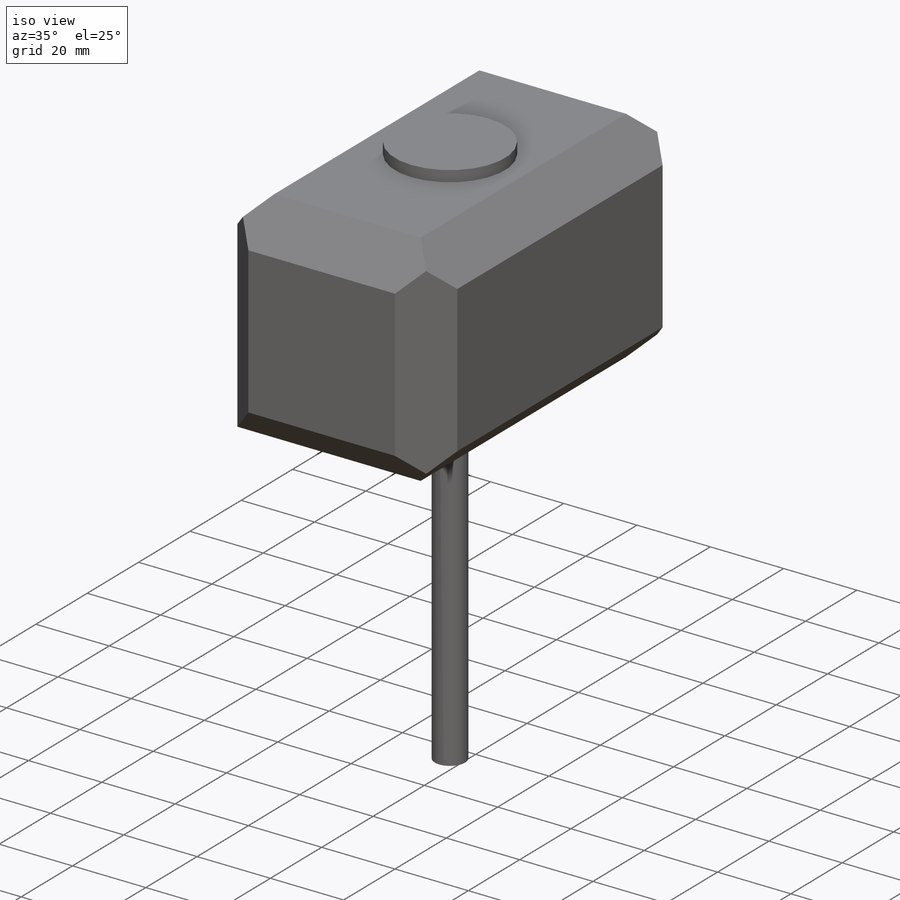
[diagram: iso view]
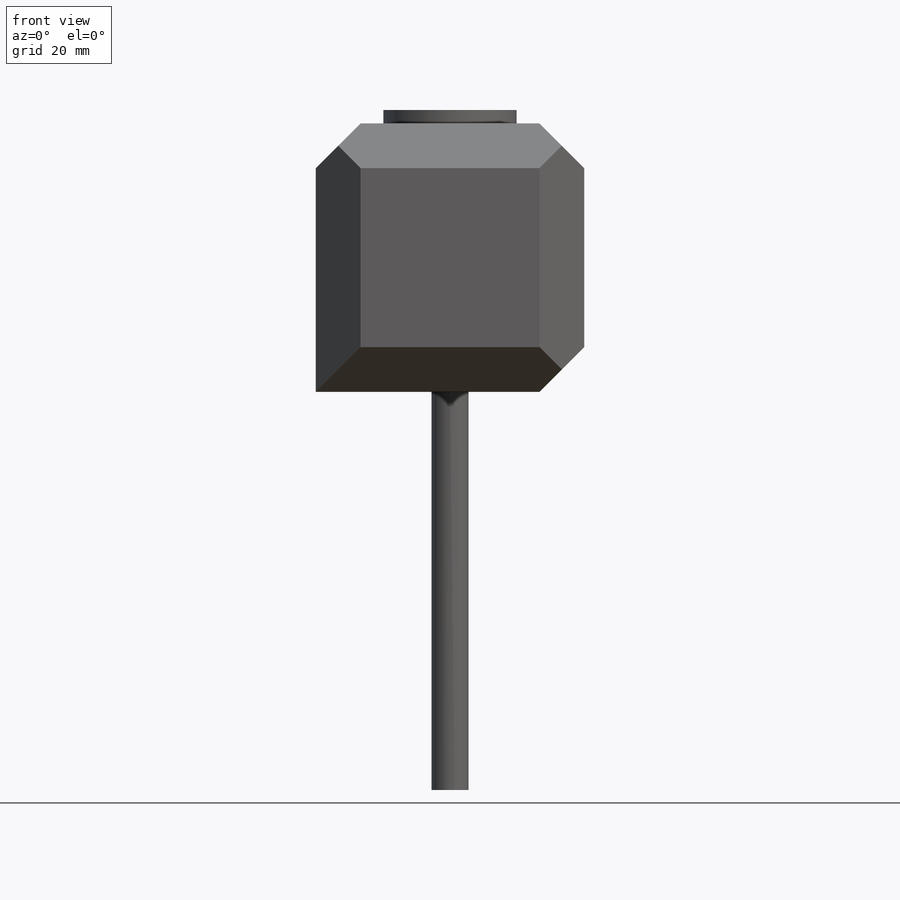
[diagram: front view]
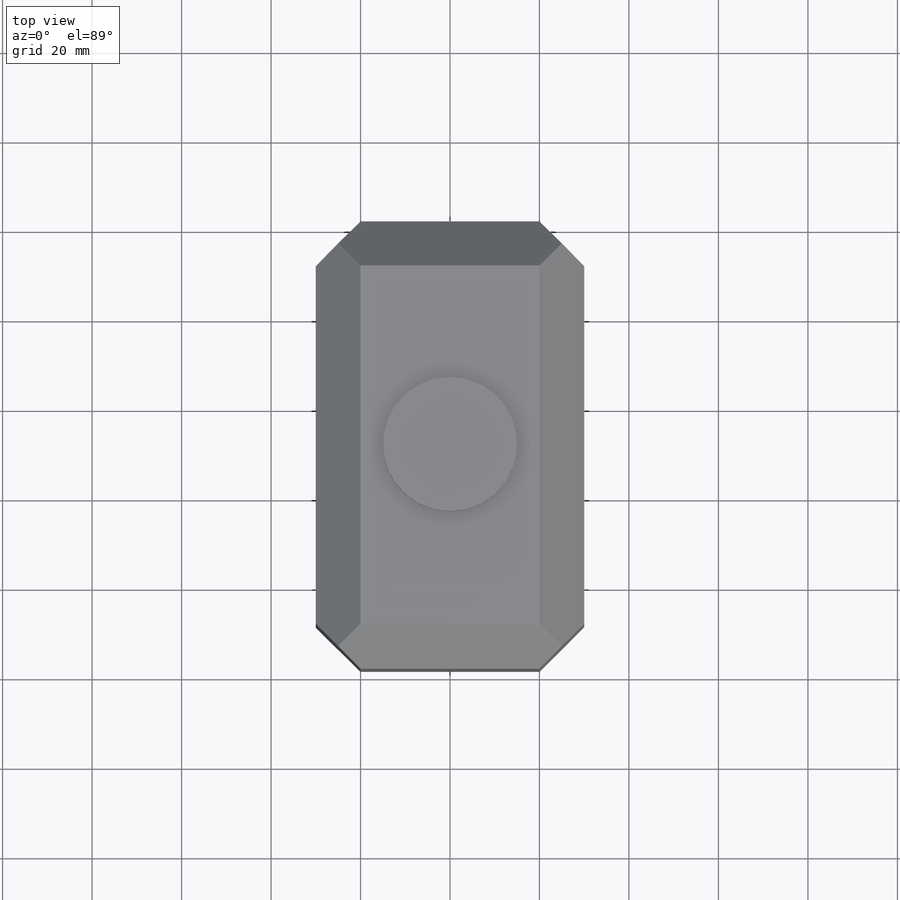
[diagram: top view]
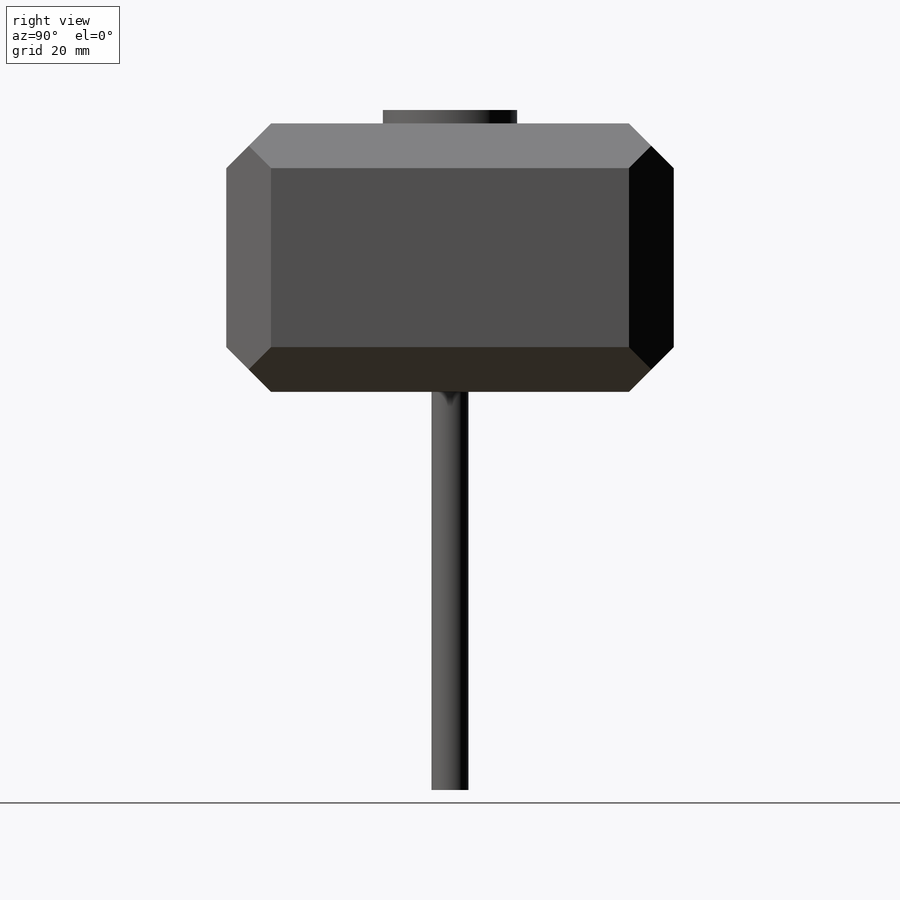
[diagram: right view]
SOLIDWORKS PART (.sldprt)
format: sldprt  version: not decoded by parser v0  size: 216,576 bytes
history: native  units: mm
features: chamfer x11, plane x3, sketch x3, extrude x3, material x1 (+8 scaffold rows collapsed)
feature tree (29):
  scaffold x8  (default folders/planes/origin — collapsed)
  material  "材质 <未指定>"
  plane  "前视基准面"
  plane  "上视基准面"
  plane  "右视基准面"
  sketch  "草图1"  dims[D1=60.0mm D2=60.0mm]
  extrude  "凸台-拉伸1"  Depth=100mm
  chamfer  "倒角1"  Distance=10mm Angle=45deg
  chamfer  "倒角2"  Distance=10mm Angle=45deg
  chamfer  "倒角3"  Distance=10mm Angle=45deg
  chamfer  "倒角4"  Distance=10mm Angle=45deg
  chamfer  "倒角5"  Distance=10mm Angle=45deg
  chamfer  "倒角6"  Distance=10mm Angle=45deg
  chamfer  "倒角7"  Distance=10mm Angle=45deg
  chamfer  "倒角8"  Distance=10mm Angle=45deg
  sketch  "草图4"  dims[D2=30.0mm D3=30.0mm D1=40.0mm]
  extrude  "凸台-拉伸2"  Depth=3mm
  sketch  "草图5"  dims[D1=40.0mm]
  extrude  "凸台-拉伸3"  Depth=89mm
  chamfer  "倒角9"  Distance=10mm Angle=45deg
  chamfer  "倒角10"  Distance=10mm Angle=45deg
  chamfer  "倒角11"  Distance=10mm Angle=45deg
decode coverage: 17 of 17 modeling features carry decoded parameters
note: suppression state not decoded; provenance and decode notes live in map.json
